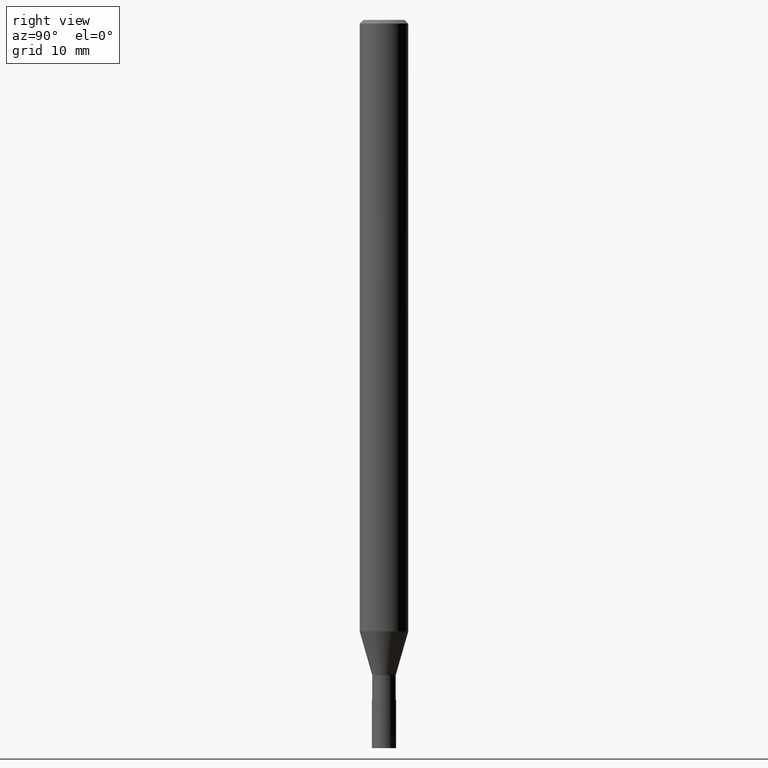
[diagram: clean part render]
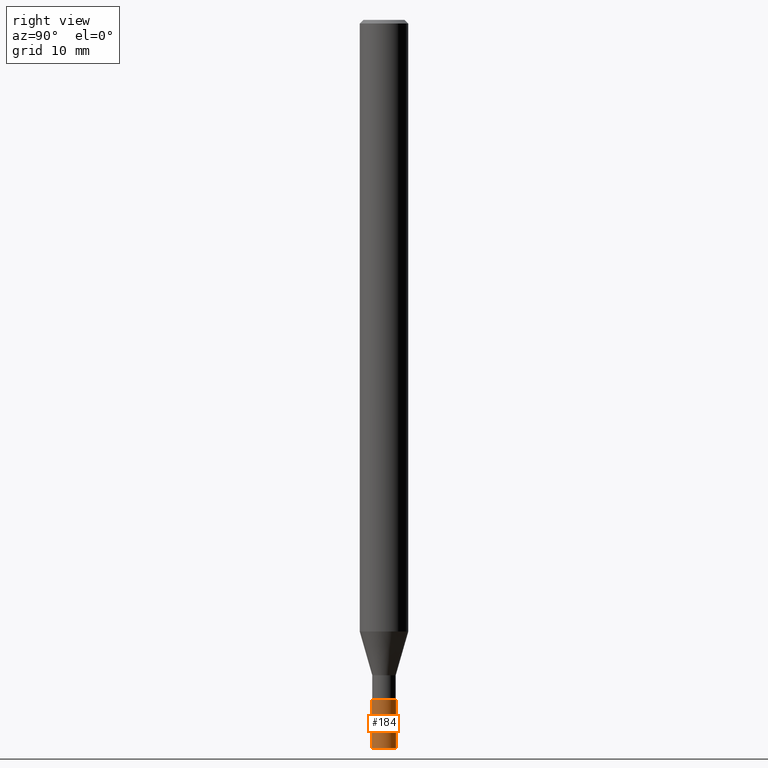
[diagram: same view with one face highlighted and labeled with its STEP entity id]
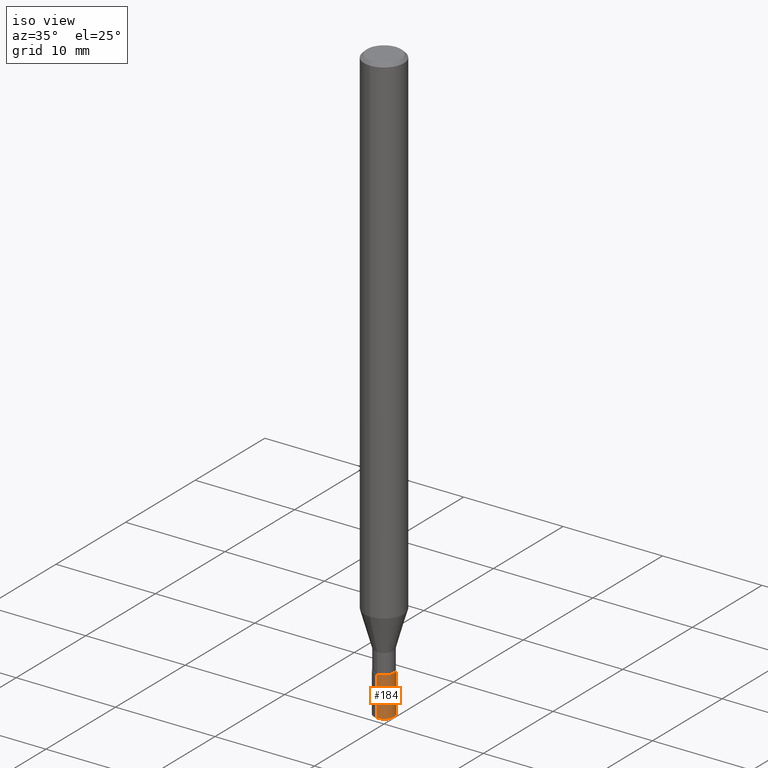
[diagram: same view with one face highlighted and labeled with its STEP entity id]
A machine part, right view. The second image highlights one B-rep face of the part: STEP entity #184.
A second angle (iso view) of the same face is appended — the face is thin or edge-on in the first view.
In plain terms, the highlighted conical surface has half-angle 0.001 deg.
Its self-contained STEP definition (entity closure, byte-faithful):
#94=VERTEX_POINT('',#231);
#108=EDGE_CURVE('',#146,#94,#247,.T.);
#134=EDGE_CURVE('',#188,#144,#278,.T.);
#142=EDGE_CURVE('',#188,#94,#287,.T.);
#144=VERTEX_POINT('',#289);
#146=VERTEX_POINT('',#291);
#172=EDGE_CURVE('',#144,#146,#319,.T.);
#184=ADVANCED_FACE('',(#331),#332,.T.);
#188=VERTEX_POINT('',#336);
#231=CARTESIAN_POINT('',(1.224483893187E-016,-0.9999,-56.0));
#247=LINE('',#396,#397);
#278=LINE('',#435,#436);
#287=CIRCLE('',#446,0.9999);
#289=CARTESIAN_POINT('',(0.0,1.0,-60.0));
#291=CARTESIAN_POINT('',(1.22460635382238E-016,-1.0,-60.0));
#319=CIRCLE('',#490,1.0);
#331=FACE_OUTER_BOUND('',#505,.T.);
#332=CONICAL_SURFACE('',#506,0.99995,2.49999999947889E-005);
#336=CARTESIAN_POINT('',(0.0,0.9999,-56.0));
#396=CARTESIAN_POINT('',(1.22454512350469E-016,-0.99995,-58.0));
#397=VECTOR('',#560,1.0);
#435=CARTESIAN_POINT('',(-1.22454512350469E-016,0.99995,-58.0));
#436=VECTOR('',#609,1.0);
#446=AXIS2_PLACEMENT_3D('',#616,#617,#618);
#490=AXIS2_PLACEMENT_3D('',#645,#646,#647);
#505=EDGE_LOOP('',(#657,#658,#659,#660));
#506=AXIS2_PLACEMENT_3D('',#661,#662,#663);
#560=DIRECTION('',(-3.06151588359888E-021,2.49999999921847E-005,0.9999999996875));
#609=DIRECTION('',(-3.06151588359888E-021,2.49999999921847E-005,-0.9999999996875));
#616=CARTESIAN_POINT('',(0.0,0.0,-56.0));
#617=DIRECTION('',(0.0,0.0,-1.0));
#618=DIRECTION('',(0.0,1.0,0.0));
#645=CARTESIAN_POINT('',(0.0,0.0,-60.0));
#646=DIRECTION('',(0.0,0.0,-1.0));
#647=DIRECTION('',(0.0,1.0,0.0));
#657=ORIENTED_EDGE('',*,*,#134,.F.);
#658=ORIENTED_EDGE('',*,*,#142,.T.);
#659=ORIENTED_EDGE('',*,*,#108,.F.);
#660=ORIENTED_EDGE('',*,*,#172,.F.);
#661=CARTESIAN_POINT('',(0.0,0.0,-58.0));
#662=DIRECTION('',(0.0,-0.0,-1.0));
#663=DIRECTION('',(0.0,1.0,0.0));